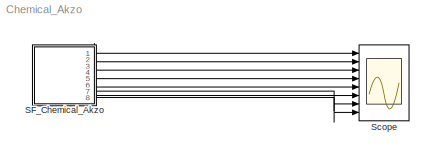
MODEL Chemical_Akzo
KIND model
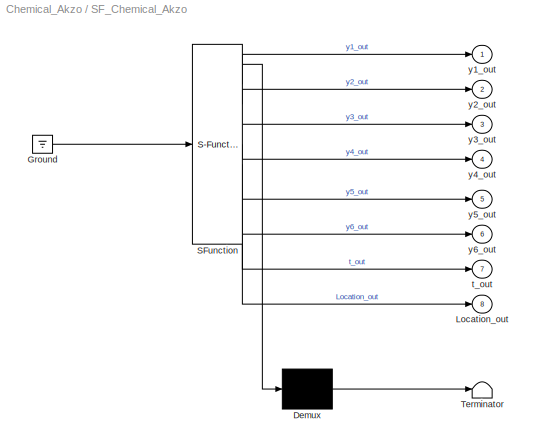
BLOCK [SubSystem] SF_Chemical_Akzo
  ErrorFcn = Stateflow.Translate.translate
  PermitHierarchicalResolution = ExplicitOnly
  Ports = [0, 8]
  RequestExecContextInheritance = off
  SFBlockType = Chart
  SID = 1
  TreatAsAtomicUnit = on
BLOCK [Demux] SF_Chemical_Akzo/ Demux 
  Outputs = 1
  Ports = [1, 1]
  SID = 1::86
BLOCK [Ground] SF_Chemical_Akzo/ Ground 
  SID = 1::88
BLOCK [S-Function] SF_Chemical_Akzo/ SFunction 
  EnableBusSupport = off
  FunctionName = sf_sfun
  PortCounts = [1 9]
  Ports = [1, 9]
  SFcnIsStateOwnerBlock = off
  SFunctionDeploymentMode = off
  SID = 1::85
  Tag = Stateflow S-Function 3
BLOCK [Terminator] SF_Chemical_Akzo/ Terminator 
  SID = 1::87
BLOCK [Outport] SF_Chemical_Akzo/Location_out
  IconDisplay = Port number
  Port = 8
  SID = 1::84
BLOCK [Outport] SF_Chemical_Akzo/t_out
  IconDisplay = Port number
  Port = 7
  SID = 1::83
BLOCK [Outport] SF_Chemical_Akzo/y1_out
  IconDisplay = Port number
  SID = 1::77
BLOCK [Outport] SF_Chemical_Akzo/y2_out
  IconDisplay = Port number
  Port = 2
  SID = 1::78
BLOCK [Outport] SF_Chemical_Akzo/y3_out
  IconDisplay = Port number
  Port = 3
  SID = 1::79
BLOCK [Outport] SF_Chemical_Akzo/y4_out
  IconDisplay = Port number
  Port = 4
  SID = 1::80
BLOCK [Outport] SF_Chemical_Akzo/y5_out
  IconDisplay = Port number
  Port = 5
  SID = 1::81
BLOCK [Outport] SF_Chemical_Akzo/y6_out
  IconDisplay = Port number
  Port = 6
  SID = 1::82
BLOCK [Scope] Scope
  Floating = off
  NumInputPorts = 8
  Ports = [8]
  SID = 2
  ScopeSpecificationString = C++SS(StrPVP('Location','[188, 365, 512, 604]'),StrPVP('Open','off'),MxPVP('AxesTitles',54,'struct(''axes1'',''%<SignalLabel>'',''axes2'',''%<SignalLabel>'',''axes3'',''%<SignalLabel>'',''axes4'',''%<SignalLabel>'',''axes5'',''%<SignalLabel>'',''axes6'',''%<SignalLabel>'',''axes7'',''%<SignalLabel>'',''axes8'',''%<SignalLabel>'')'),StrPVP('SaveToWorkspace','on'),StrPVP('DataFormat','Structure'),St...<+93ch>
LINE SF_Chemical_Akzo/ Demux :1 -> SF_Chemical_Akzo/ Terminator :1
LINE SF_Chemical_Akzo/ Ground :1 -> SF_Chemical_Akzo/ SFunction :1
LINE SF_Chemical_Akzo/ SFunction :1 -> SF_Chemical_Akzo/ Demux :1
LINE SF_Chemical_Akzo/ SFunction :2 -> SF_Chemical_Akzo/y1_out:1
LINE SF_Chemical_Akzo/ SFunction :3 -> SF_Chemical_Akzo/y2_out:1
LINE SF_Chemical_Akzo/ SFunction :4 -> SF_Chemical_Akzo/y3_out:1
LINE SF_Chemical_Akzo/ SFunction :5 -> SF_Chemical_Akzo/y4_out:1
LINE SF_Chemical_Akzo/ SFunction :6 -> SF_Chemical_Akzo/y5_out:1
LINE SF_Chemical_Akzo/ SFunction :7 -> SF_Chemical_Akzo/y6_out:1
LINE SF_Chemical_Akzo/ SFunction :8 -> SF_Chemical_Akzo/t_out:1
LINE SF_Chemical_Akzo/ SFunction :9 -> SF_Chemical_Akzo/Location_out:1
LINE SF_Chemical_Akzo:1 -> Scope:1
LINE SF_Chemical_Akzo:2 -> Scope:2
LINE SF_Chemical_Akzo:3 -> Scope:3
LINE SF_Chemical_Akzo:4 -> Scope:4
LINE SF_Chemical_Akzo:5 -> Scope:5
LINE SF_Chemical_Akzo:6 -> Scope:6
LINE SF_Chemical_Akzo:7 -> Scope:7
LINE SF_Chemical_Akzo:8 -> Scope:8
CHART SF_Chemical_Akzo states=1 transitions=1
  STATE_LABEL 'Chemical_Akzo\\ndu:\\ny1_dot = -2.0 * k1 * y1 ^ 4.0 * y2 ^ 0.5 + k2 * y3 * y4 - k2 / K * y1 * y5 - k3 * y1 * y4 ^ 2.0;\\ny2_dot = -0.5 * k1 * y1 ^ 4.0 * y2 ^ 0.5 - k3 * y1 * y4 ^ 2.0 - 0.5 * k4 * y6 ^ 2.0 * y2 ^ 0.5 + klA * (p_CO2 / H - y2);\\ny3_dot = k1 * y1 ^ 4.0 * y2 ^ 0.5 - k2 * y3 * y4 + k2 / K * y1 * y5;\\ny4_dot = -k2 * y3 * y4 + k2 / K * y1 * y5 - 2.0 * k3 * y1 * y4 ^ 2.0;\\ny5_dot = k2 * y3 * ...<+344ch>'
